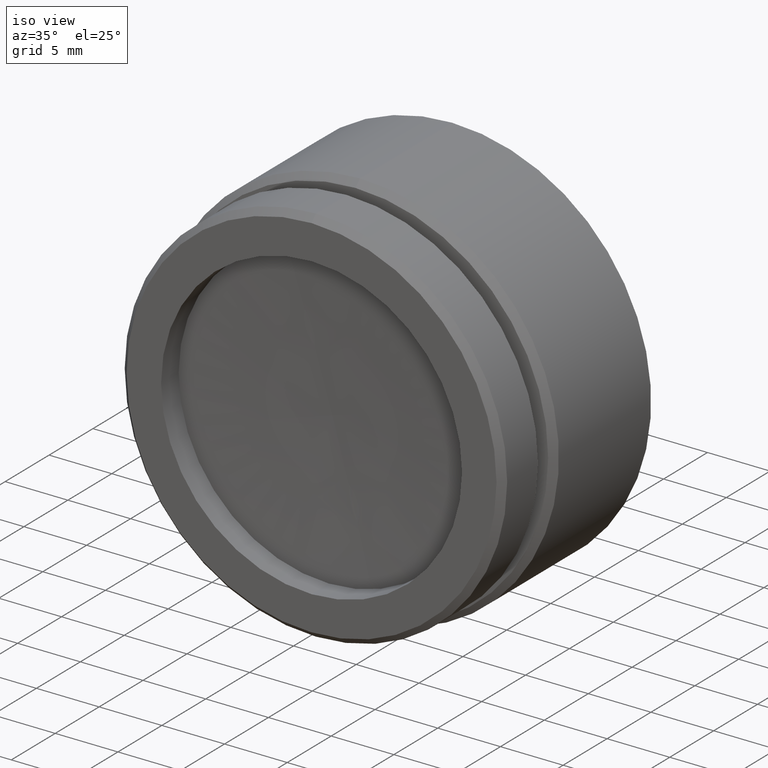
[diagram: clean part render]
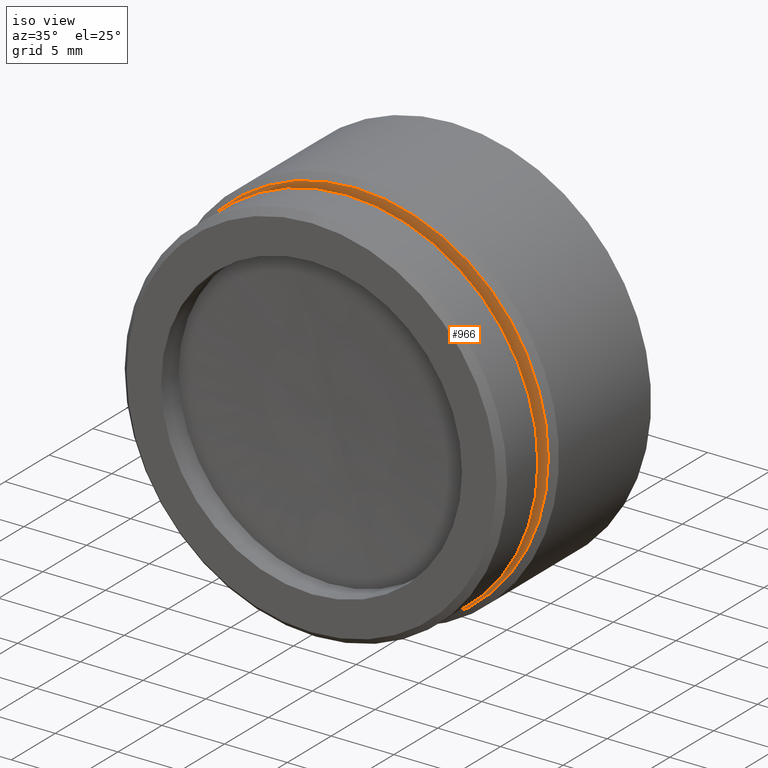
[diagram: same view with one face highlighted and labeled with its STEP entity id]
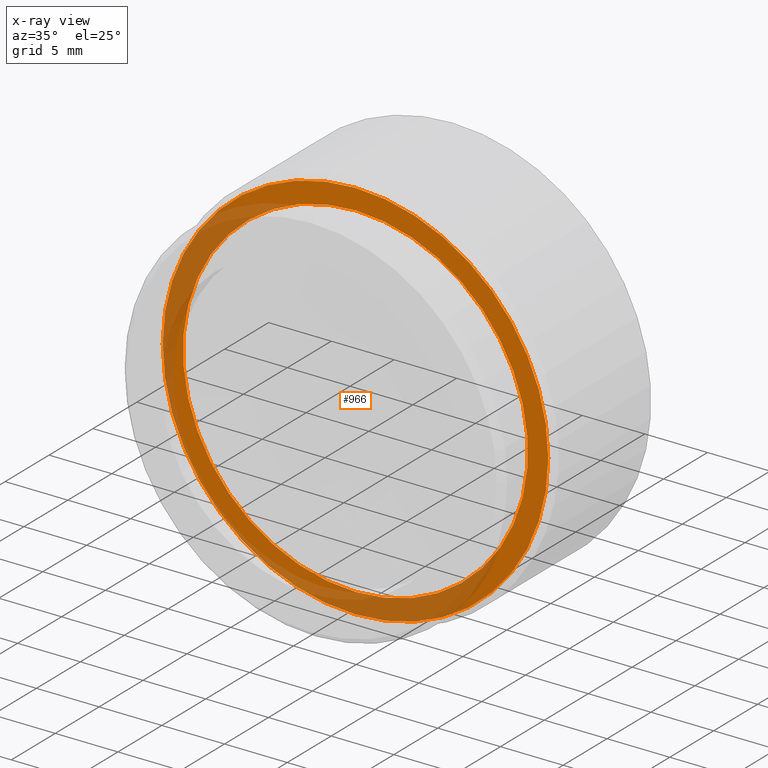
[diagram: x-ray of the same camera — body ghosted, the highlighted face saturated]
A machine part, iso view. The second image highlights one B-rep face of the part: STEP entity #966.
The next image is the same camera in x-ray: the body ghosted, the highlighted face saturated — about 35% of this face is hidden behind the body in this view.
In plain terms, the highlighted planar face has unit normal (0, -1, 0).
Its self-contained STEP definition (entity closure, byte-faithful):
#20 = VERTEX_POINT ( 'NONE', #1010 ) ;
#60 = CARTESIAN_POINT ( 'NONE',  ( -62.96855859389910393, 9.153165921879422129, 35.30147029529263847 ) ) ;
#72 = CARTESIAN_POINT ( 'NONE',  ( -62.96855859389910393, 9.153165921879422129, 4.551470295292635804 ) ) ;
#135 = ORIENTED_EDGE ( 'NONE', *, *, #1509, .F. ) ;
#140 = PLANE ( 'NONE',  #362 ) ;
#141 = AXIS2_PLACEMENT_3D ( 'NONE', #998, #1341, #988 ) ;
#163 = CARTESIAN_POINT ( 'NONE',  ( -62.96855859389910393, 9.153165921879422129, 19.92647029529263492 ) ) ;
#204 = EDGE_LOOP ( 'NONE', ( #855, #135 ) ) ;
#232 = FACE_BOUND ( 'NONE', #204, .T. ) ;
#308 = CARTESIAN_POINT ( 'NONE',  ( -62.96855859389910393, 9.153165921879422129, 19.92647029529263492 ) ) ;
#335 = CARTESIAN_POINT ( 'NONE',  ( -49.21855859389910393, 9.153165921879422129, 19.92647029529263492 ) ) ;
#355 = EDGE_CURVE ( 'NONE', #376, #20, #863, .T. ) ;
#362 = AXIS2_PLACEMENT_3D ( 'NONE', #335, #700, #1296 ) ;
#376 = VERTEX_POINT ( 'NONE', #604 ) ;
#452 = DIRECTION ( 'NONE',  ( 0.000000000000000000, 0.000000000000000000, -1.000000000000000000 ) ) ;
#473 = AXIS2_PLACEMENT_3D ( 'NONE', #163, #514, #884 ) ;
#512 = AXIS2_PLACEMENT_3D ( 'NONE', #1397, #1058, #585 ) ;
#514 = DIRECTION ( 'NONE',  ( 0.000000000000000000, -1.000000000000000000, 0.000000000000000000 ) ) ;
#585 = DIRECTION ( 'NONE',  ( 0.000000000000000000, 0.000000000000000000, -1.000000000000000000 ) ) ;
#604 = CARTESIAN_POINT ( 'NONE',  ( -62.96855859389910393, 9.153165921879422129, 6.176470295292635804 ) ) ;
#635 = CIRCLE ( 'NONE', #1281, 15.37500000000000000 ) ;
#700 = DIRECTION ( 'NONE',  ( 0.000000000000000000, -1.000000000000000000, 0.000000000000000000 ) ) ;
#743 = ORIENTED_EDGE ( 'NONE', *, *, #1274, .T. ) ;
#757 = VERTEX_POINT ( 'NONE', #72 ) ;
#855 = ORIENTED_EDGE ( 'NONE', *, *, #355, .F. ) ;
#863 = CIRCLE ( 'NONE', #512, 13.75000000000000000 ) ;
#884 = DIRECTION ( 'NONE',  ( 0.000000000000000000, 0.000000000000000000, -1.000000000000000000 ) ) ;
#952 = ORIENTED_EDGE ( 'NONE', *, *, #1476, .T. ) ;
#966 = ADVANCED_FACE ( 'NONE', ( #1510, #232 ), #140, .T. ) ;
#988 = DIRECTION ( 'NONE',  ( 0.000000000000000000, 0.000000000000000000, -1.000000000000000000 ) ) ;
#998 = CARTESIAN_POINT ( 'NONE',  ( -62.96855859389910393, 9.153165921879422129, 19.92647029529263492 ) ) ;
#1010 = CARTESIAN_POINT ( 'NONE',  ( -62.96855859389910393, 9.153165921879422129, 33.67647029529263847 ) ) ;
#1032 = VERTEX_POINT ( 'NONE', #60 ) ;
#1058 = DIRECTION ( 'NONE',  ( 0.000000000000000000, -1.000000000000000000, 0.000000000000000000 ) ) ;
#1274 = EDGE_CURVE ( 'NONE', #757, #1032, #635, .T. ) ;
#1281 = AXIS2_PLACEMENT_3D ( 'NONE', #308, #1506, #452 ) ;
#1296 = DIRECTION ( 'NONE',  ( 0.000000000000000000, 0.000000000000000000, -1.000000000000000000 ) ) ;
#1341 = DIRECTION ( 'NONE',  ( 0.000000000000000000, -1.000000000000000000, 0.000000000000000000 ) ) ;
#1351 = CIRCLE ( 'NONE', #141, 13.75000000000000000 ) ;
#1375 = CIRCLE ( 'NONE', #473, 15.37500000000000000 ) ;
#1397 = CARTESIAN_POINT ( 'NONE',  ( -62.96855859389910393, 9.153165921879422129, 19.92647029529263492 ) ) ;
#1442 = EDGE_LOOP ( 'NONE', ( #952, #743 ) ) ;
#1476 = EDGE_CURVE ( 'NONE', #1032, #757, #1375, .T. ) ;
#1506 = DIRECTION ( 'NONE',  ( 0.000000000000000000, -1.000000000000000000, 0.000000000000000000 ) ) ;
#1509 = EDGE_CURVE ( 'NONE', #20, #376, #1351, .T. ) ;
#1510 = FACE_OUTER_BOUND ( 'NONE', #1442, .T. ) ;